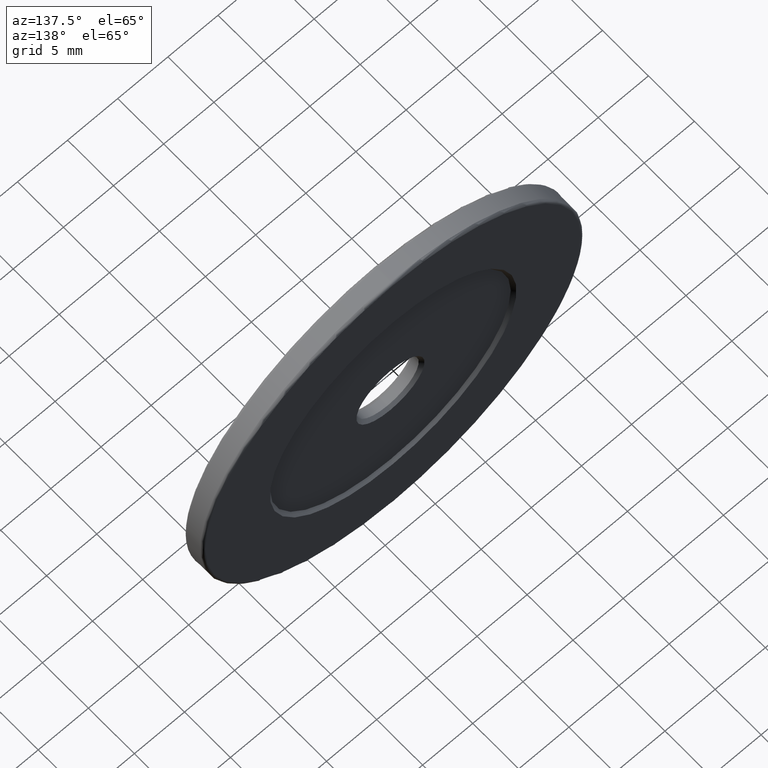
[diagram: clean part render]
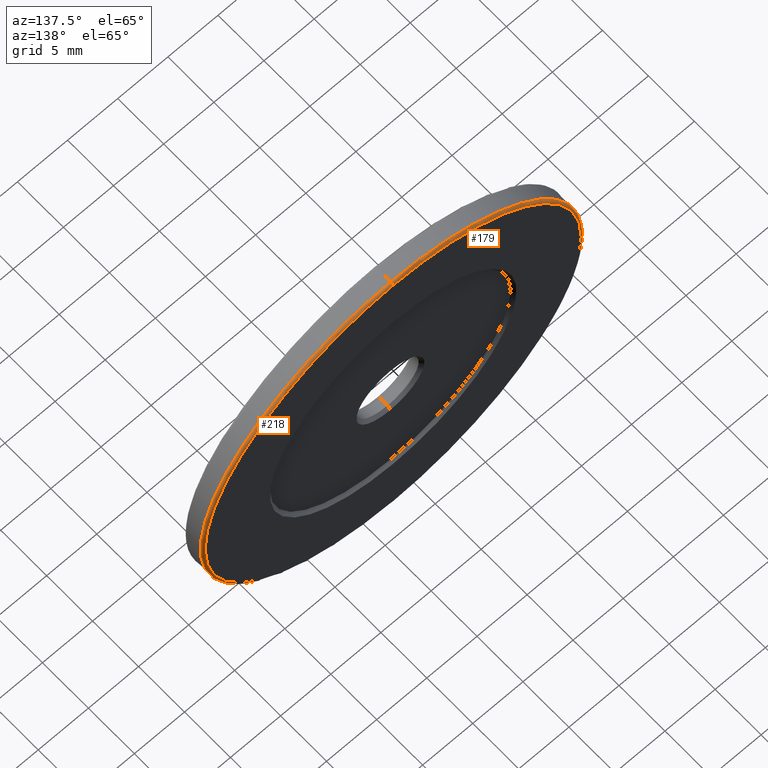
[diagram: same view with one multi-face feature highlighted, each face labeled with its STEP entity id]
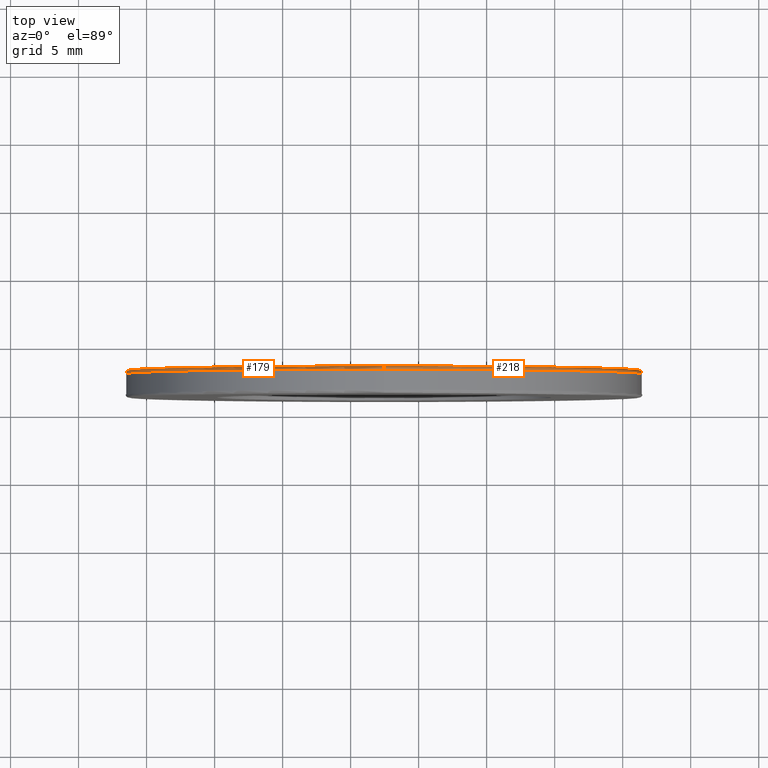
[diagram: same view with one multi-face feature highlighted, each face labeled with its STEP entity id]
A machine part, auxiliary view. The highlighted faces form ONE feature: a constant-radius fillet chain: 2 tangent blend faces with common blend radius 0.25 mm. The faces share edges in the B-rep.
A second angle (top view) of the same feature is appended — it is thin or edge-on in the first view.
Their STEP definitions:
[1] entity #218 (Torus):
#2 = CARTESIAN_POINT ( 'NONE',  ( -7.546808913101048510, -2.143595127302728276, 38.00000000000000000 ) ) ;
#4 = ORIENTED_EDGE ( 'NONE', *, *, #373, .T. ) ;
#23 = DIRECTION ( 'NONE',  ( 0.000000000000000000, 1.000000000000000000, 0.000000000000000000 ) ) ;
#30 = AXIS2_PLACEMENT_3D ( 'NONE', #222, #602, #367 ) ;
#34 = EDGE_LOOP ( 'NONE', ( #42, #4, #264, #383 ) ) ;
#35 = CARTESIAN_POINT ( 'NONE',  ( -7.546808913101048510, -2.143595127302728276, 56.99999999999999289 ) ) ;
#41 = DIRECTION ( 'NONE',  ( 1.000000000000000000, -0.000000000000000000, 1.224646799147353207E-16 ) ) ;
#42 = ORIENTED_EDGE ( 'NONE', *, *, #603, .F. ) ;
#47 = CIRCLE ( 'NONE', #159, 18.99999999999999645 ) ;
#84 = CARTESIAN_POINT ( 'NONE',  ( -7.546808913101045846, -2.143595127302728276, 19.25000000000000000 ) ) ;
#145 = VERTEX_POINT ( 'NONE', #432 ) ;
#159 = AXIS2_PLACEMENT_3D ( 'NONE', #2, #330, #568 ) ;
#184 = DIRECTION ( 'NONE',  ( -1.000000000000000000, 0.000000000000000000, 0.000000000000000000 ) ) ;
#189 = VERTEX_POINT ( 'NONE', #584 ) ;
#194 = VERTEX_POINT ( 'NONE', #250 ) ;
#218 = ADVANCED_FACE ( 'NONE', ( #401 ), #490, .T. ) ;
#222 = CARTESIAN_POINT ( 'NONE',  ( -7.546808913101048510, -1.893595127302727832, 38.00000000000000000 ) ) ;
#244 = CIRCLE ( 'NONE', #518, 0.2500000000000002220 ) ;
#250 = CARTESIAN_POINT ( 'NONE',  ( -7.546808913101044958, -2.143595127302728276, 19.00000000000000000 ) ) ;
#251 = VERTEX_POINT ( 'NONE', #35 ) ;
#257 = CIRCLE ( 'NONE', #588, 0.2500000000000002220 ) ;
#264 = ORIENTED_EDGE ( 'NONE', *, *, #510, .F. ) ;
#311 = CARTESIAN_POINT ( 'NONE',  ( -7.546808913101048510, -2.143595127302728276, 38.00000000000000000 ) ) ;
#330 = DIRECTION ( 'NONE',  ( -0.000000000000000000, -1.000000000000000000, -0.000000000000000000 ) ) ;
#335 = AXIS2_PLACEMENT_3D ( 'NONE', #311, #23, #509 ) ;
#358 = CIRCLE ( 'NONE', #30, 18.74999999999999645 ) ;
#367 = DIRECTION ( 'NONE',  ( 0.000000000000000000, 0.000000000000000000, 1.000000000000000000 ) ) ;
#373 = EDGE_CURVE ( 'NONE', #194, #189, #244, .T. ) ;
#383 = ORIENTED_EDGE ( 'NONE', *, *, #387, .F. ) ;
#387 = EDGE_CURVE ( 'NONE', #251, #145, #257, .T. ) ;
#401 = FACE_OUTER_BOUND ( 'NONE', #34, .T. ) ;
#420 = CARTESIAN_POINT ( 'NONE',  ( -7.546808913101048510, -2.143595127302728276, 56.74999999999999289 ) ) ;
#432 = CARTESIAN_POINT ( 'NONE',  ( -7.546808913101048510, -1.893595127302727832, 56.74999999999999289 ) ) ;
#490 = TOROIDAL_SURFACE ( 'NONE', #335, 18.75000000000000000, 0.2500000000000000000 ) ;
#509 = DIRECTION ( 'NONE',  ( 0.000000000000000000, 0.000000000000000000, 1.000000000000000000 ) ) ;
#510 = EDGE_CURVE ( 'NONE', #145, #189, #358, .T. ) ;
#516 = DIRECTION ( 'NONE',  ( 0.000000000000000000, 0.000000000000000000, -1.000000000000000000 ) ) ;
#518 = AXIS2_PLACEMENT_3D ( 'NONE', #84, #41, #516 ) ;
#568 = DIRECTION ( 'NONE',  ( 0.000000000000000000, 0.000000000000000000, 1.000000000000000000 ) ) ;
#584 = CARTESIAN_POINT ( 'NONE',  ( -7.546808913101045846, -1.893595127302727832, 19.25000000000000000 ) ) ;
#588 = AXIS2_PLACEMENT_3D ( 'NONE', #420, #184, #607 ) ;
#602 = DIRECTION ( 'NONE',  ( 0.000000000000000000, 1.000000000000000000, 0.000000000000000000 ) ) ;
#603 = EDGE_CURVE ( 'NONE', #194, #251, #47, .T. ) ;
#607 = DIRECTION ( 'NONE',  ( 0.000000000000000000, 0.000000000000000000, 1.000000000000000000 ) ) ;
[2] entity #179 (Torus):
#6 = DIRECTION ( 'NONE',  ( 0.000000000000000000, 0.000000000000000000, 1.000000000000000000 ) ) ;
#14 = FACE_OUTER_BOUND ( 'NONE', #185, .T. ) ;
#35 = CARTESIAN_POINT ( 'NONE',  ( -7.546808913101048510, -2.143595127302728276, 56.99999999999999289 ) ) ;
#41 = DIRECTION ( 'NONE',  ( 1.000000000000000000, -0.000000000000000000, 1.224646799147353207E-16 ) ) ;
#84 = CARTESIAN_POINT ( 'NONE',  ( -7.546808913101045846, -2.143595127302728276, 19.25000000000000000 ) ) ;
#96 = CIRCLE ( 'NONE', #436, 18.74999999999999645 ) ;
#108 = EDGE_CURVE ( 'NONE', #189, #145, #96, .T. ) ;
#145 = VERTEX_POINT ( 'NONE', #432 ) ;
#156 = DIRECTION ( 'NONE',  ( 0.000000000000000000, 1.000000000000000000, 0.000000000000000000 ) ) ;
#160 = CARTESIAN_POINT ( 'NONE',  ( -7.546808913101048510, -1.893595127302727832, 38.00000000000000000 ) ) ;
#162 = ORIENTED_EDGE ( 'NONE', *, *, #373, .F. ) ;
#179 = ADVANCED_FACE ( 'NONE', ( #14 ), #464, .T. ) ;
#182 = ORIENTED_EDGE ( 'NONE', *, *, #234, .F. ) ;
#184 = DIRECTION ( 'NONE',  ( -1.000000000000000000, 0.000000000000000000, 0.000000000000000000 ) ) ;
#185 = EDGE_LOOP ( 'NONE', ( #162, #182, #294, #466 ) ) ;
#189 = VERTEX_POINT ( 'NONE', #584 ) ;
#194 = VERTEX_POINT ( 'NONE', #250 ) ;
#212 = DIRECTION ( 'NONE',  ( 0.000000000000000000, 0.000000000000000000, 1.000000000000000000 ) ) ;
#234 = EDGE_CURVE ( 'NONE', #251, #194, #270, .T. ) ;
#244 = CIRCLE ( 'NONE', #518, 0.2500000000000002220 ) ;
#250 = CARTESIAN_POINT ( 'NONE',  ( -7.546808913101044958, -2.143595127302728276, 19.00000000000000000 ) ) ;
#251 = VERTEX_POINT ( 'NONE', #35 ) ;
#257 = CIRCLE ( 'NONE', #588, 0.2500000000000002220 ) ;
#270 = CIRCLE ( 'NONE', #398, 18.99999999999999645 ) ;
#288 = AXIS2_PLACEMENT_3D ( 'NONE', #493, #156, #6 ) ;
#294 = ORIENTED_EDGE ( 'NONE', *, *, #387, .T. ) ;
#344 = DIRECTION ( 'NONE',  ( 0.000000000000000000, 0.000000000000000000, 1.000000000000000000 ) ) ;
#361 = CARTESIAN_POINT ( 'NONE',  ( -7.546808913101048510, -2.143595127302728276, 38.00000000000000000 ) ) ;
#373 = EDGE_CURVE ( 'NONE', #194, #189, #244, .T. ) ;
#387 = EDGE_CURVE ( 'NONE', #251, #145, #257, .T. ) ;
#398 = AXIS2_PLACEMENT_3D ( 'NONE', #361, #593, #212 ) ;
#420 = CARTESIAN_POINT ( 'NONE',  ( -7.546808913101048510, -2.143595127302728276, 56.74999999999999289 ) ) ;
#432 = CARTESIAN_POINT ( 'NONE',  ( -7.546808913101048510, -1.893595127302727832, 56.74999999999999289 ) ) ;
#436 = AXIS2_PLACEMENT_3D ( 'NONE', #160, #572, #344 ) ;
#464 = TOROIDAL_SURFACE ( 'NONE', #288, 18.75000000000000000, 0.2500000000000000000 ) ;
#466 = ORIENTED_EDGE ( 'NONE', *, *, #108, .F. ) ;
#493 = CARTESIAN_POINT ( 'NONE',  ( -7.546808913101048510, -2.143595127302728276, 38.00000000000000000 ) ) ;
#516 = DIRECTION ( 'NONE',  ( 0.000000000000000000, 0.000000000000000000, -1.000000000000000000 ) ) ;
#518 = AXIS2_PLACEMENT_3D ( 'NONE', #84, #41, #516 ) ;
#572 = DIRECTION ( 'NONE',  ( 0.000000000000000000, 1.000000000000000000, 0.000000000000000000 ) ) ;
#584 = CARTESIAN_POINT ( 'NONE',  ( -7.546808913101045846, -1.893595127302727832, 19.25000000000000000 ) ) ;
#588 = AXIS2_PLACEMENT_3D ( 'NONE', #420, #184, #607 ) ;
#593 = DIRECTION ( 'NONE',  ( -0.000000000000000000, -1.000000000000000000, -0.000000000000000000 ) ) ;
#607 = DIRECTION ( 'NONE',  ( 0.000000000000000000, 0.000000000000000000, 1.000000000000000000 ) ) ;